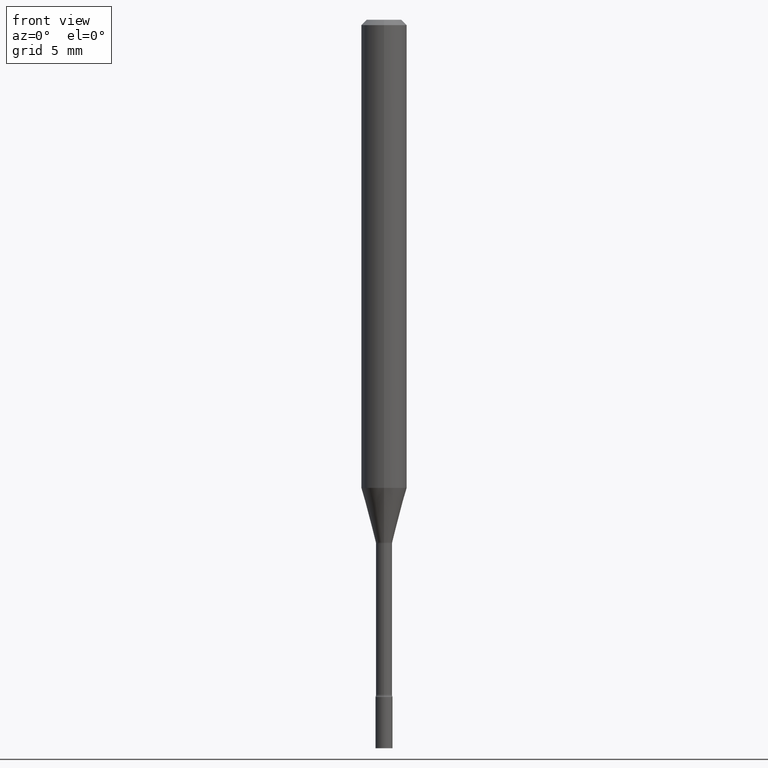
[diagram: clean part render]
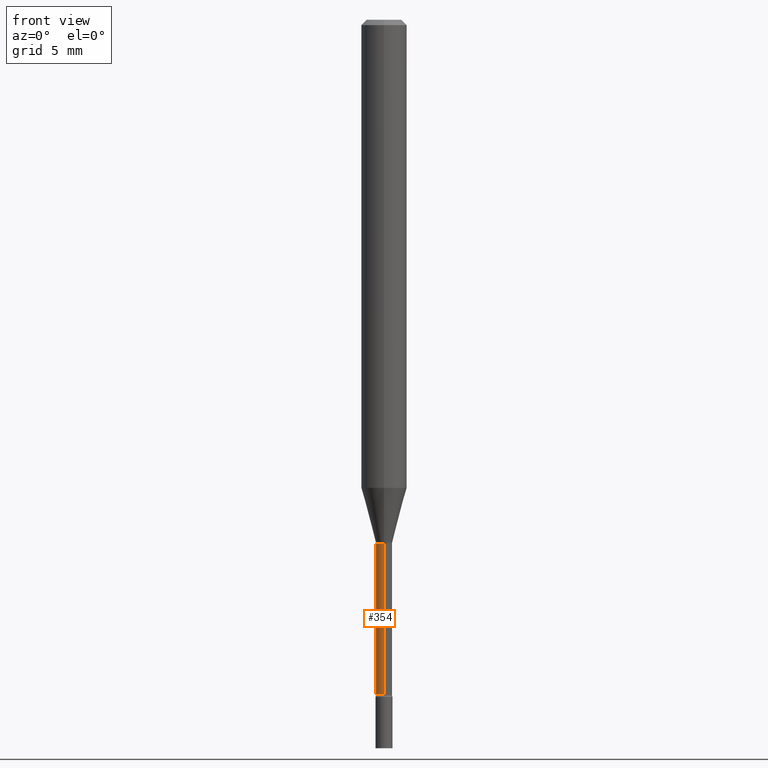
[diagram: same view with one face highlighted and labeled with its STEP entity id]
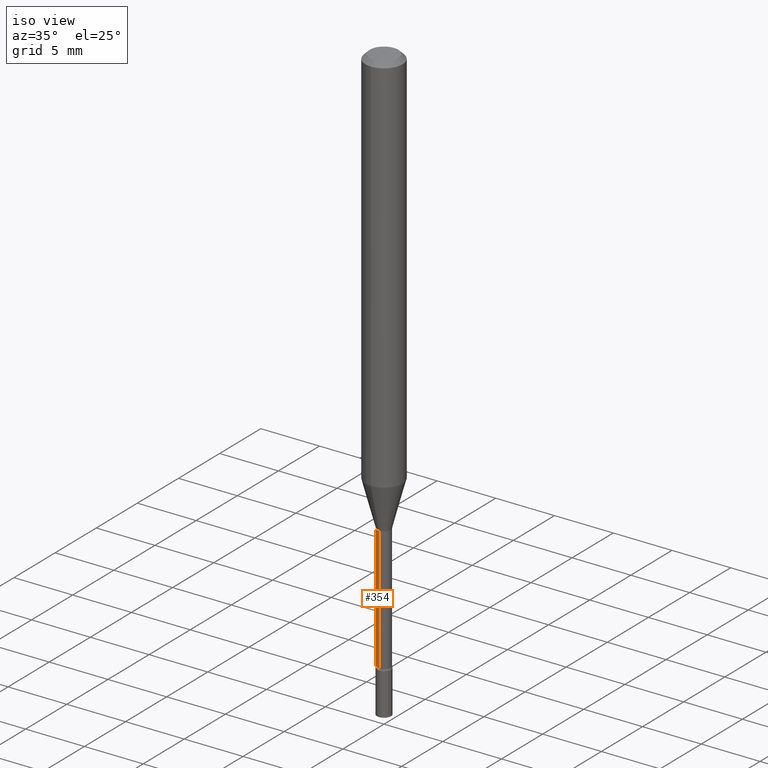
[diagram: same view with one face highlighted and labeled with its STEP entity id]
A machine part, front view. The second image highlights one B-rep face of the part: STEP entity #354.
A second angle (iso view) of the same face is appended — the face is thin or edge-on in the first view.
In plain terms, the highlighted cylindrical surface (edge-blend (fillet) strip) has radius 0.5613 mm, axis along (-0, 0, 1).
Its self-contained STEP definition (entity closure, byte-faithful):
#4 = CYLINDRICAL_SURFACE ( 'NONE', #292, 0.02210000000000002587 ) ;
#13 = ORIENTED_EDGE ( 'NONE', *, *, #67, .T. ) ;
#14 = LINE ( 'NONE', #26, #149 ) ;
#26 = CARTESIAN_POINT ( 'NONE',  ( 1.570299446029823003E-16, 0.02210000000000002587, -7.716142788293254101E-17 ) ) ;
#27 = DIRECTION ( 'NONE',  ( -6.982962677686265922E-15, -1.000000000000000000, 0.000000000000000000 ) ) ;
#37 = EDGE_CURVE ( 'NONE', #72, #279, #80, .T. ) ;
#42 = DIRECTION ( 'NONE',  ( -6.982962677686265922E-15, -1.000000000000000000, 0.000000000000000000 ) ) ;
#67 = EDGE_CURVE ( 'NONE', #143, #372, #107, .T. ) ;
#72 = VERTEX_POINT ( 'NONE', #188 ) ;
#78 = DIRECTION ( 'NONE',  ( -2.445478591985838029E-29, 3.491467325019567696E-15, 1.000000000000000000 ) ) ;
#79 = ORIENTED_EDGE ( 'NONE', *, *, #37, .F. ) ;
#80 = CIRCLE ( 'NONE', #291, 0.02209999999999999812 ) ;
#86 = CARTESIAN_POINT ( 'NONE',  ( -1.543234751768313085E-16, -0.02210000000000501841, -1.437974787463811133 ) ) ;
#87 = DIRECTION ( 'NONE',  ( -2.445478591985838029E-29, 3.491467325019567696E-15, 1.000000000000000000 ) ) ;
#89 = CARTESIAN_POINT ( 'NONE',  ( -1.543234751768666594E-16, -0.02210000000000002587, 7.716142788293254101E-17 ) ) ;
#107 = CIRCLE ( 'NONE', #472, 0.02210000000000006057 ) ;
#123 = LINE ( 'NONE', #89, #141 ) ;
#141 = VECTOR ( 'NONE', #243, 39.37007874015748143 ) ;
#143 = VERTEX_POINT ( 'NONE', #261 ) ;
#146 = EDGE_LOOP ( 'NONE', ( #374, #13, #298, #79 ) ) ;
#149 = VECTOR ( 'NONE', #376, 39.37007874015748143 ) ;
#151 = CARTESIAN_POINT ( 'NONE',  ( 4.530670406511994597E-29, -6.468544740734887756E-15, -1.852672283192177582 ) ) ;
#171 = CARTESIAN_POINT ( 'NONE',  ( -1.543234751768215957E-16, -0.02210000000000652762, -1.852672283192177582 ) ) ;
#188 = CARTESIAN_POINT ( 'NONE',  ( 1.570299446030275858E-16, 0.02209999999999497783, -1.437974787463811133 ) ) ;
#243 = DIRECTION ( 'NONE',  ( -2.445478591985837749E-29, 3.491467325019568091E-15, 1.000000000000000000 ) ) ;
#247 = DIRECTION ( 'NONE',  ( -2.445478591985838029E-29, 3.491467325019567696E-15, 1.000000000000000000 ) ) ;
#261 = CARTESIAN_POINT ( 'NONE',  ( 1.620037437533484049E-16, 0.02209999999999359352, -1.852672283192177582 ) ) ;
#279 = VERTEX_POINT ( 'NONE', #86 ) ;
#291 = AXIS2_PLACEMENT_3D ( 'NONE', #493, #87, #42 ) ;
#292 = AXIS2_PLACEMENT_3D ( 'NONE', #404, #247, #410 ) ;
#298 = ORIENTED_EDGE ( 'NONE', *, *, #319, .T. ) ;
#319 = EDGE_CURVE ( 'NONE', #372, #279, #123, .T. ) ;
#354 = ADVANCED_FACE ( 'NONE', ( #446 ), #4, .T. ) ;
#372 = VERTEX_POINT ( 'NONE', #171 ) ;
#374 = ORIENTED_EDGE ( 'NONE', *, *, #502, .F. ) ;
#376 = DIRECTION ( 'NONE',  ( -2.445478591985837749E-29, 3.491467325019568091E-15, 1.000000000000000000 ) ) ;
#404 = CARTESIAN_POINT ( 'NONE',  ( 0.000000000000000000, 0.000000000000000000, 0.000000000000000000 ) ) ;
#410 = DIRECTION ( 'NONE',  ( -6.982962677686265922E-15, -1.000000000000000000, 3.491467325019568091E-15 ) ) ;
#446 = FACE_OUTER_BOUND ( 'NONE', #146, .T. ) ;
#472 = AXIS2_PLACEMENT_3D ( 'NONE', #151, #78, #27 ) ;
#493 = CARTESIAN_POINT ( 'NONE',  ( 3.516536558558135871E-29, -5.020641984631854302E-15, -1.437974787463811133 ) ) ;
#502 = EDGE_CURVE ( 'NONE', #143, #72, #14, .T. ) ;